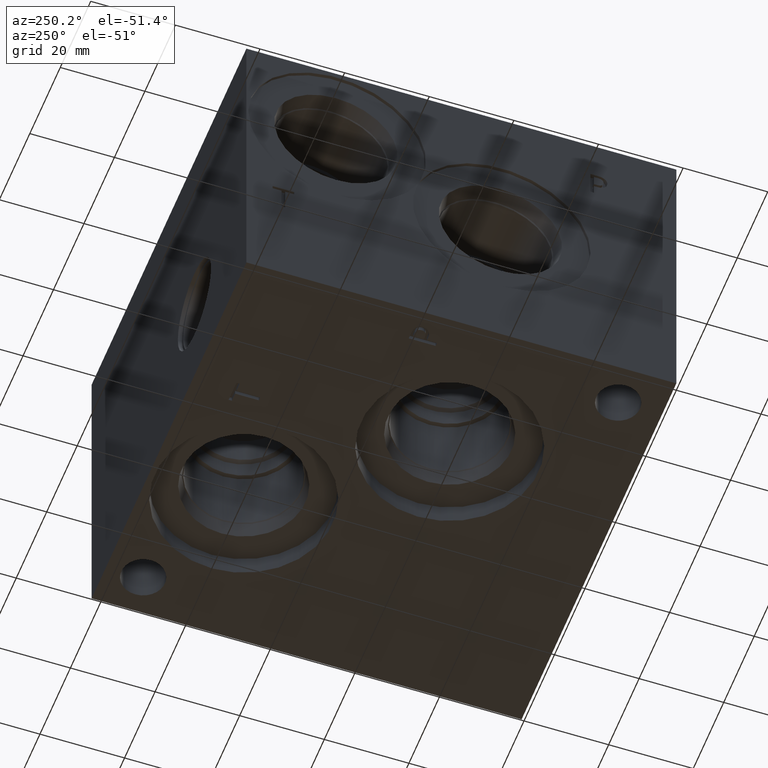
[diagram: clean part render]
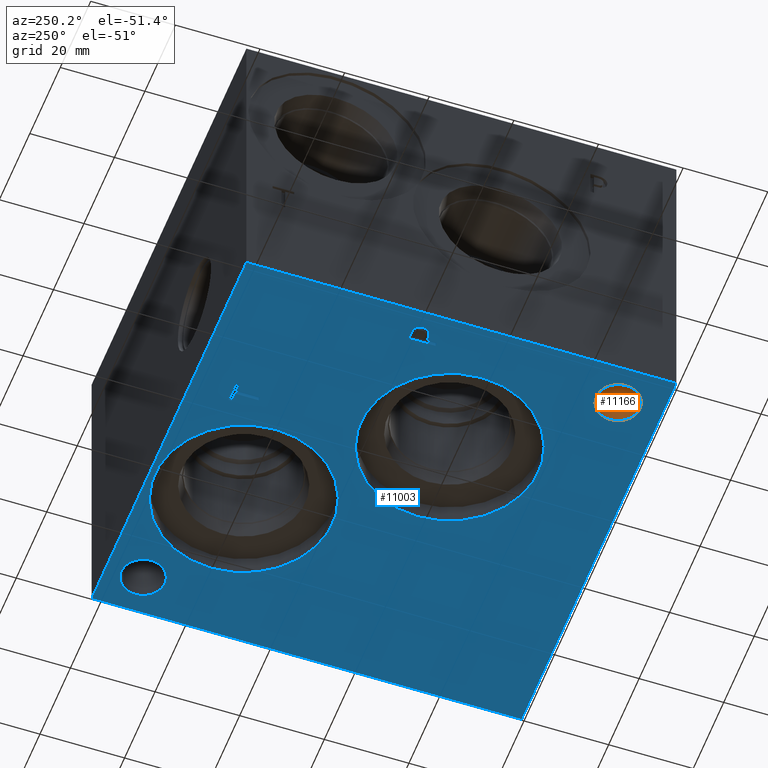
[diagram: same view with the hole feature highlighted: cylindrical wall and planar end face, labeled with their STEP entity ids]
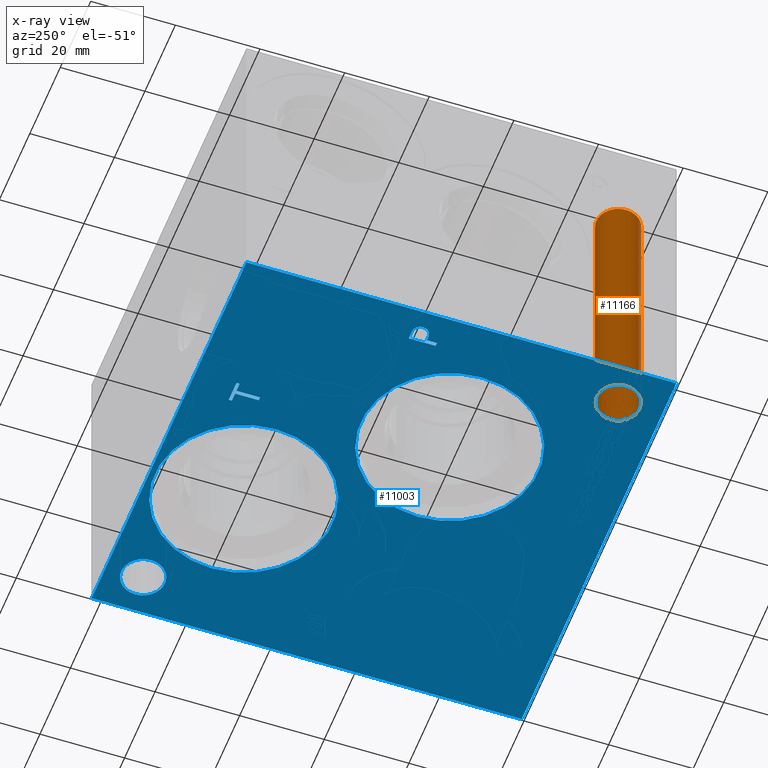
[diagram: x-ray of the same camera — body ghosted, the hole faces saturated]
A machine part, auxiliary view. The highlighted faces form one hole feature of diameter 10.3124 mm: the cylindrical wall (entity #11166, orange) and its adjacent planar end face (entity #11003, blue) — they share a circular edge in the B-rep.
The next image is the same camera in x-ray (body ghosted, the hole faces saturated) — the bore reads through the body.
Wall:
#93=CYLINDRICAL_SURFACE('',#11749,5.1562);
#107=CIRCLE('',#11458,5.1562);
#253=CIRCLE('',#11745,5.1562);
#1385=FACE_OUTER_BOUND('',#2017,.T.);
#2017=EDGE_LOOP('',(#9690,#9691,#9692,#9693));
#3081=LINE('',#19153,#4122);
#4122=VECTOR('',#13925,5.1562);
#4850=VERTEX_POINT('',#17929);
#5142=VERTEX_POINT('',#19144);
#6254=EDGE_CURVE('',#4850,#4850,#107,.T.);
#6678=EDGE_CURVE('',#5142,#5142,#253,.T.);
#6682=EDGE_CURVE('',#5142,#4850,#3081,.T.);
#9690=ORIENTED_EDGE('',*,*,#6678,.T.);
#9691=ORIENTED_EDGE('',*,*,#6682,.T.);
#9692=ORIENTED_EDGE('',*,*,#6254,.F.);
#9693=ORIENTED_EDGE('',*,*,#6682,.F.);
#11166=ADVANCED_FACE('',(#1385),#93,.F.);
#11458=AXIS2_PLACEMENT_3D('',#17930,#13116,#13117);
#11745=AXIS2_PLACEMENT_3D('',#19145,#13914,#13915);
#11749=AXIS2_PLACEMENT_3D('',#19152,#13923,#13924);
#13116=DIRECTION('center_axis',(0.,0.,1.));
#13117=DIRECTION('ref_axis',(1.,0.,0.));
#13914=DIRECTION('center_axis',(0.,0.,1.));
#13915=DIRECTION('ref_axis',(1.,0.,0.));
#13923=DIRECTION('center_axis',(0.,0.,1.));
#13924=DIRECTION('ref_axis',(1.,0.,0.));
#13925=DIRECTION('',(0.,0.,-1.));
#17929=CARTESIAN_POINT('',(4.3688,10.3124,0.));
#17930=CARTESIAN_POINT('Origin',(9.525,10.3124,0.));
#19144=CARTESIAN_POINT('',(4.3688,10.3124,62.5856));
#19145=CARTESIAN_POINT('Origin',(9.525,10.3124,62.5856));
#19152=CARTESIAN_POINT('Origin',(9.525,10.3124,-86.4393556307944));
#19153=CARTESIAN_POINT('',(4.3688,10.3124,-86.4393556307944));
End face:
#107=CIRCLE('',#11458,5.1562);
#108=CIRCLE('',#11459,5.1562);
#109=CIRCLE('',#11460,21.0185);
#110=CIRCLE('',#11461,21.0185);
#111=CIRCLE('',#11462,21.0185);
#112=CIRCLE('',#11463,21.0185);
#333=FACE_BOUND('',#1822,.T.);
#334=FACE_BOUND('',#1823,.T.);
#335=FACE_BOUND('',#1824,.T.);
#336=FACE_BOUND('',#1825,.T.);
#337=FACE_BOUND('',#1826,.T.);
#338=FACE_BOUND('',#1827,.T.);
#634=B_SPLINE_CURVE_WITH_KNOTS('',2,(#17826,#17827,#17828,#17829),
 .UNSPECIFIED.,.F.,.F.,(3,1,3),(0.,1.,2.),.UNSPECIFIED.);
#636=B_SPLINE_CURVE_WITH_KNOTS('',2,(#17847,#17848,#17849,#17850),
 .UNSPECIFIED.,.F.,.F.,(3,1,3),(0.,1.,2.),.UNSPECIFIED.);
#638=B_SPLINE_CURVE_WITH_KNOTS('',2,(#17896,#17897,#17898,#17899),
 .UNSPECIFIED.,.F.,.F.,(3,1,3),(0.,1.,2.),.UNSPECIFIED.);
#640=B_SPLINE_CURVE_WITH_KNOTS('',2,(#17914,#17915,#17916,#17917),
 .UNSPECIFIED.,.F.,.F.,(3,1,3),(0.,1.,2.),.UNSPECIFIED.);
#1222=FACE_OUTER_BOUND('',#1821,.T.);
#1821=EDGE_LOOP('',(#8825,#8826,#8827,#8828));
#1822=EDGE_LOOP('',(#8829));
#1823=EDGE_LOOP('',(#8830));
#1824=EDGE_LOOP('',(#8831,#8832));
#1825=EDGE_LOOP('',(#8833,#8834));
#1826=EDGE_LOOP('',(#8835,#8836,#8837,#8838,#8839,#8840,#8841,#8842));
#1827=EDGE_LOOP('',(#8843,#8844,#8845,#8846,#8847,#8848,#8849,#8850,#8851));
#2442=LINE('',#16815,#3483);
#2837=LINE('',#17859,#3878);
#2840=LINE('',#17865,#3881);
#2843=LINE('',#17871,#3884);
#2846=LINE('',#17877,#3887);
#2849=LINE('',#17883,#3890);
#2853=LINE('',#17925,#3894);
#2854=LINE('',#17927,#3895);
#2855=LINE('',#17928,#3896);
#2856=LINE('',#17943,#3897);
#2857=LINE('',#17945,#3898);
#2858=LINE('',#17947,#3899);
#2859=LINE('',#17949,#3900);
#2860=LINE('',#17951,#3901);
#2861=LINE('',#17953,#3902);
#2862=LINE('',#17955,#3903);
#2863=LINE('',#17956,#3904);
#3483=VECTOR('',#12406,10.);
#3878=VECTOR('',#13085,10.);
#3881=VECTOR('',#13090,10.);
#3884=VECTOR('',#13095,10.);
#3887=VECTOR('',#13100,10.);
#3890=VECTOR('',#13105,10.);
#3894=VECTOR('',#13113,10.);
#3895=VECTOR('',#13114,10.);
#3896=VECTOR('',#13115,10.);
#3897=VECTOR('',#13128,10.);
#3898=VECTOR('',#13129,10.);
#3899=VECTOR('',#13130,10.);
#3900=VECTOR('',#13131,10.);
#3901=VECTOR('',#13132,10.);
#3902=VECTOR('',#13133,10.);
#3903=VECTOR('',#13134,10.);
#3904=VECTOR('',#13135,10.);
#4552=VERTEX_POINT('',#16812);
#4553=VERTEX_POINT('',#16814);
#4830=VERTEX_POINT('',#17824);
#4831=VERTEX_POINT('',#17825);
#4834=VERTEX_POINT('',#17846);
#4836=VERTEX_POINT('',#17858);
#4838=VERTEX_POINT('',#17864);
#4840=VERTEX_POINT('',#17870);
#4842=VERTEX_POINT('',#17876);
#4844=VERTEX_POINT('',#17882);
#4846=VERTEX_POINT('',#17895);
#4848=VERTEX_POINT('',#17924);
#4849=VERTEX_POINT('',#17926);
#4850=VERTEX_POINT('',#17929);
#4851=VERTEX_POINT('',#17931);
#4852=VERTEX_POINT('',#17933);
#4853=VERTEX_POINT('',#17934);
#4854=VERTEX_POINT('',#17937);
#4855=VERTEX_POINT('',#17938);
#4856=VERTEX_POINT('',#17941);
#4857=VERTEX_POINT('',#17942);
#4858=VERTEX_POINT('',#17944);
#4859=VERTEX_POINT('',#17946);
#4860=VERTEX_POINT('',#17948);
#4861=VERTEX_POINT('',#17950);
#4862=VERTEX_POINT('',#17952);
#4863=VERTEX_POINT('',#17954);
#5808=EDGE_CURVE('',#4552,#4553,#2442,.T.);
#6224=EDGE_CURVE('',#4830,#4831,#634,.T.);
#6228=EDGE_CURVE('',#4834,#4830,#636,.T.);
#6231=EDGE_CURVE('',#4836,#4834,#2837,.T.);
#6234=EDGE_CURVE('',#4838,#4836,#2840,.T.);
#6237=EDGE_CURVE('',#4840,#4838,#2843,.T.);
#6240=EDGE_CURVE('',#4842,#4840,#2846,.T.);
#6243=EDGE_CURVE('',#4844,#4842,#2849,.T.);
#6246=EDGE_CURVE('',#4846,#4844,#638,.T.);
#6249=EDGE_CURVE('',#4831,#4846,#640,.T.);
#6251=EDGE_CURVE('',#4848,#4552,#2853,.T.);
#6252=EDGE_CURVE('',#4849,#4848,#2854,.T.);
#6253=EDGE_CURVE('',#4553,#4849,#2855,.T.);
#6254=EDGE_CURVE('',#4850,#4850,#107,.T.);
#6255=EDGE_CURVE('',#4851,#4851,#108,.T.);
#6256=EDGE_CURVE('',#4852,#4853,#109,.T.);
#6257=EDGE_CURVE('',#4853,#4852,#110,.T.);
#6258=EDGE_CURVE('',#4854,#4855,#111,.T.);
#6259=EDGE_CURVE('',#4855,#4854,#112,.T.);
#6260=EDGE_CURVE('',#4856,#4857,#2856,.T.);
#6261=EDGE_CURVE('',#4857,#4858,#2857,.T.);
#6262=EDGE_CURVE('',#4858,#4859,#2858,.T.);
#6263=EDGE_CURVE('',#4859,#4860,#2859,.T.);
#6264=EDGE_CURVE('',#4860,#4861,#2860,.T.);
#6265=EDGE_CURVE('',#4861,#4862,#2861,.T.);
#6266=EDGE_CURVE('',#4862,#4863,#2862,.T.);
#6267=EDGE_CURVE('',#4863,#4856,#2863,.T.);
#8825=ORIENTED_EDGE('',*,*,#5808,.F.);
#8826=ORIENTED_EDGE('',*,*,#6251,.F.);
#8827=ORIENTED_EDGE('',*,*,#6252,.F.);
#8828=ORIENTED_EDGE('',*,*,#6253,.F.);
#8829=ORIENTED_EDGE('',*,*,#6254,.T.);
#8830=ORIENTED_EDGE('',*,*,#6255,.T.);
#8831=ORIENTED_EDGE('',*,*,#6256,.T.);
#8832=ORIENTED_EDGE('',*,*,#6257,.T.);
#8833=ORIENTED_EDGE('',*,*,#6258,.T.);
#8834=ORIENTED_EDGE('',*,*,#6259,.T.);
#8835=ORIENTED_EDGE('',*,*,#6260,.T.);
#8836=ORIENTED_EDGE('',*,*,#6261,.T.);
#8837=ORIENTED_EDGE('',*,*,#6262,.T.);
#8838=ORIENTED_EDGE('',*,*,#6263,.T.);
#8839=ORIENTED_EDGE('',*,*,#6264,.T.);
#8840=ORIENTED_EDGE('',*,*,#6265,.T.);
#8841=ORIENTED_EDGE('',*,*,#6266,.T.);
#8842=ORIENTED_EDGE('',*,*,#6267,.T.);
#8843=ORIENTED_EDGE('',*,*,#6224,.T.);
#8844=ORIENTED_EDGE('',*,*,#6249,.T.);
#8845=ORIENTED_EDGE('',*,*,#6246,.T.);
#8846=ORIENTED_EDGE('',*,*,#6243,.T.);
#8847=ORIENTED_EDGE('',*,*,#6240,.T.);
#8848=ORIENTED_EDGE('',*,*,#6237,.T.);
#8849=ORIENTED_EDGE('',*,*,#6234,.T.);
#8850=ORIENTED_EDGE('',*,*,#6231,.T.);
#8851=ORIENTED_EDGE('',*,*,#6228,.T.);
#10104=PLANE('',#11457);
#11003=ADVANCED_FACE('',(#1222,#333,#334,#335,#336,#337,#338),#10104,.F.);
#11457=AXIS2_PLACEMENT_3D('',#17923,#13111,#13112);
#11458=AXIS2_PLACEMENT_3D('',#17930,#13116,#13117);
#11459=AXIS2_PLACEMENT_3D('',#17932,#13118,#13119);
#11460=AXIS2_PLACEMENT_3D('',#17935,#13120,#13121);
#11461=AXIS2_PLACEMENT_3D('',#17936,#13122,#13123);
#11462=AXIS2_PLACEMENT_3D('',#17939,#13124,#13125);
#11463=AXIS2_PLACEMENT_3D('',#17940,#13126,#13127);
#12406=DIRECTION('',(1.,0.,0.));
#13085=DIRECTION('',(-1.,-5.56775304226774E-15,0.));
#13090=DIRECTION('',(-3.14708893596576E-15,1.,0.));
#13095=DIRECTION('',(1.,1.0524411238433E-14,0.));
#13100=DIRECTION('',(3.75218139805001E-15,-1.,0.));
#13105=DIRECTION('',(1.,0.,0.));
#13111=DIRECTION('center_axis',(0.,0.,1.));
#13112=DIRECTION('ref_axis',(1.,0.,0.));
#13113=DIRECTION('',(0.,-1.,0.));
#13114=DIRECTION('',(-1.,0.,0.));
#13115=DIRECTION('',(0.,1.,0.));
#13116=DIRECTION('center_axis',(0.,0.,1.));
#13117=DIRECTION('ref_axis',(1.,0.,0.));
#13118=DIRECTION('center_axis',(0.,0.,1.));
#13119=DIRECTION('ref_axis',(1.,0.,0.));
#13120=DIRECTION('center_axis',(0.,0.,1.));
#13121=DIRECTION('ref_axis',(1.,0.,0.));
#13122=DIRECTION('center_axis',(0.,0.,1.));
#13123=DIRECTION('ref_axis',(1.,0.,0.));
#13124=DIRECTION('center_axis',(0.,0.,1.));
#13125=DIRECTION('ref_axis',(1.,0.,0.));
#13126=DIRECTION('center_axis',(0.,0.,1.));
#13127=DIRECTION('ref_axis',(1.,0.,0.));
#13128=DIRECTION('',(1.,2.10488224768658E-14,0.));
#13129=DIRECTION('',(-3.17280044688052E-15,1.,0.));
#13130=DIRECTION('',(1.,0.,0.));
#13131=DIRECTION('',(0.,1.,0.));
#13132=DIRECTION('',(-1.,-3.47984565141734E-15,0.));
#13133=DIRECTION('',(0.,-1.,0.));
#13134=DIRECTION('',(1.,0.,0.));
#13135=DIRECTION('',(3.17280044688051E-15,-1.,0.));
#16812=CARTESIAN_POINT('',(0.,0.,0.));
#16814=CARTESIAN_POINT('',(101.6,0.,0.));
#16815=CARTESIAN_POINT('',(0.,0.,0.));
#17824=CARTESIAN_POINT('',(4.83703279764059,59.9287681439707,0.));
#17825=CARTESIAN_POINT('',(4.080590345468,58.4107373726039,0.));
#17826=CARTESIAN_POINT('Ctrl Pts',(4.83703279764059,59.9287681439707,0.));
#17827=CARTESIAN_POINT('Ctrl Pts',(4.48196797315141,59.6869123939564,0.));
#17828=CARTESIAN_POINT('Ctrl Pts',(4.080590345468,58.9407616758269,0.));
#17829=CARTESIAN_POINT('Ctrl Pts',(4.080590345468,58.4107373726039,0.));
#17846=CARTESIAN_POINT('',(6.49914784561168,60.3249999046326,0.));
#17847=CARTESIAN_POINT('Ctrl Pts',(6.49914784561168,60.3249999046326,0.));
#17848=CARTESIAN_POINT('Ctrl Pts',(5.93310247323762,60.3249999046326,0.));
#17849=CARTESIAN_POINT('Ctrl Pts',(5.14063895191395,60.1397486918556,0.));
#17850=CARTESIAN_POINT('Ctrl Pts',(4.83703279764059,59.9287681439707,0.));
#17858=CARTESIAN_POINT('',(8.09436662230219,60.3249999046326,0.));
#17859=CARTESIAN_POINT('',(29.4471833111511,60.3249999046327,0.));
#17864=CARTESIAN_POINT('',(8.09436662230221,53.975,0.));
#17865=CARTESIAN_POINT('',(8.09436662230222,52.3874999999999,0.));
#17870=CARTESIAN_POINT('',(7.25044443076272,53.975,0.));
#17871=CARTESIAN_POINT('',(29.0252222153813,53.9750000000002,0.));
#17876=CARTESIAN_POINT('',(7.25044443076271,56.3420988299279,0.));
#17877=CARTESIAN_POINT('',(7.25044443076271,53.5710494149639,0.));
#17882=CARTESIAN_POINT('',(6.53516891476277,56.3420988299279,0.));
#17883=CARTESIAN_POINT('',(28.6675844573814,56.3420988299279,0.));
#17895=CARTESIAN_POINT('',(4.63634398379889,57.0007698086904,0.));
#17896=CARTESIAN_POINT('Ctrl Pts',(4.63634398379889,57.0007698086904,0.));
#17897=CARTESIAN_POINT('Ctrl Pts',(4.96567947318016,56.6765801863307,0.));
#17898=CARTESIAN_POINT('Ctrl Pts',(5.8559144679139,56.3420988299279,0.));
#17899=CARTESIAN_POINT('Ctrl Pts',(6.53516891476277,56.3420988299279,0.));
#17914=CARTESIAN_POINT('Ctrl Pts',(4.080590345468,58.4107373726039,0.));
#17915=CARTESIAN_POINT('Ctrl Pts',(4.080590345468,57.9990680108774,0.));
#17916=CARTESIAN_POINT('Ctrl Pts',(4.3739047656982,57.2580631597695,0.));
#17917=CARTESIAN_POINT('Ctrl Pts',(4.63634398379889,57.0007698086904,0.));
#17923=CARTESIAN_POINT('Origin',(50.8,50.8,0.));
#17924=CARTESIAN_POINT('',(0.,101.6,0.));
#17925=CARTESIAN_POINT('',(0.,101.6,0.));
#17926=CARTESIAN_POINT('',(101.6,101.6,0.));
#17927=CARTESIAN_POINT('',(101.6,101.6,0.));
#17928=CARTESIAN_POINT('',(101.6,0.,0.));
#17929=CARTESIAN_POINT('',(4.3688,10.3124,0.));
#17930=CARTESIAN_POINT('Origin',(9.525,10.3124,0.));
#17931=CARTESIAN_POINT('',(86.9188,92.8624,0.));
#17932=CARTESIAN_POINT('Origin',(92.075,92.8624,0.));
#17933=CARTESIAN_POINT('',(84.5185,79.375,0.));
#17934=CARTESIAN_POINT('',(42.4815,79.375,0.));
#17935=CARTESIAN_POINT('Origin',(63.5,79.375,0.));
#17936=CARTESIAN_POINT('Origin',(63.5,79.375,0.));
#17937=CARTESIAN_POINT('',(55.1561,41.275,0.));
#17938=CARTESIAN_POINT('',(13.1191,41.275,0.));
#17939=CARTESIAN_POINT('Origin',(34.1376,41.275,0.));
#17940=CARTESIAN_POINT('Origin',(34.1376,41.275,0.));
#17941=CARTESIAN_POINT('',(35.130834728547,85.725,0.));
#17942=CARTESIAN_POINT('',(35.9747569200865,85.725,0.));
#17943=CARTESIAN_POINT('',(42.9654173642731,85.7250000000001,0.));
#17944=CARTESIAN_POINT('',(35.9747569200865,91.3237033194815,0.));
#17945=CARTESIAN_POINT('',(35.9747569200866,68.2625,0.));
#17946=CARTESIAN_POINT('',(38.1051458670216,91.3237033194815,0.));
#17947=CARTESIAN_POINT('',(43.3873784600432,91.3237033194815,0.));
#17948=CARTESIAN_POINT('',(38.1051458670216,92.0749999046325,0.));
#17949=CARTESIAN_POINT('',(38.1051458670216,71.0618516597408,0.));
#17950=CARTESIAN_POINT('',(33.0004457816119,92.0749999046325,0.));
#17951=CARTESIAN_POINT('',(44.4525729335107,92.0749999046326,0.));
#17952=CARTESIAN_POINT('',(33.0004457816119,91.3237033194815,0.));
#17953=CARTESIAN_POINT('',(33.0004457816119,71.4374999523163,0.));
#17954=CARTESIAN_POINT('',(35.130834728547,91.3237033194815,0.));
#17955=CARTESIAN_POINT('',(41.9002228908059,91.3237033194815,0.));
#17956=CARTESIAN_POINT('',(35.1308347285471,71.0618516597407,0.));